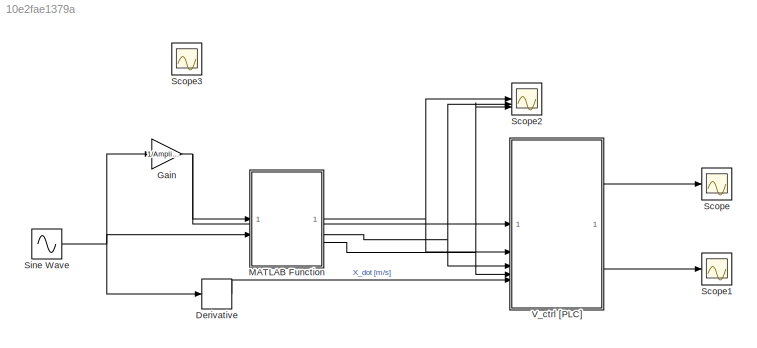
MODEL slx_10e2fae1379a
KIND model
CONFIG AbsTol = auto
CONFIG EnableMultiTasking = off
CONFIG FixedStep = 0.001
CONFIG MaxStep = auto
CONFIG MinStep = auto
CONFIG RelTol = 1e-3
CONFIG SampleTimeConstraint = Unconstrained
CONFIG SolverName = FixedStepDiscrete
CONFIG StartTime = 0.0
CONFIG StopTime = inf
WORKSPACE source: MATLAB code (in-file)
WORKSPACE Amplitude = 0.35/2  (= 0.175)
BLOCK [Derivative] Derivative
BLOCK [Gain] Gain
  Gain = 1/Amplitude
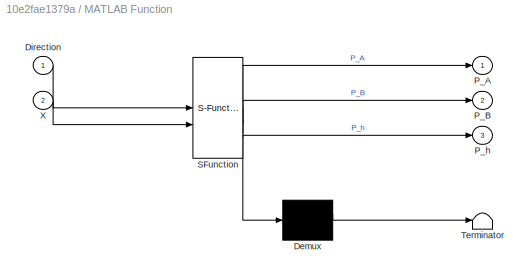
BLOCK [SubSystem] MATLAB Function
  ErrorFcn = Stateflow.Translate.translate
  PermitHierarchicalResolution = ExplicitOnly
  SFBlockType = MATLAB Function
  TreatAsAtomicUnit = on
BLOCK [Demux] MATLAB Function/ Demux 
  Outputs = 1
BLOCK [S-Function] MATLAB Function/ SFunction 
  EnableBusSupport = on
  FunctionName = sf_sfun
  PortCounts = [2 4]
  SFcnIsStateOwnerBlock = off
  SFunctionDeploymentMode = off
  Tag = Stateflow S-Function 1
BLOCK [Terminator] MATLAB Function/ Terminator 
BLOCK [Inport] MATLAB Function/Direction
BLOCK [Outport] MATLAB Function/P_A
BLOCK [Outport] MATLAB Function/P_B
  Port = 2
BLOCK [Outport] MATLAB Function/P_h
  Port = 3
BLOCK [Inport] MATLAB Function/X
  Port = 2
BLOCK [Scope] Scope
  Floating = off
  NumInputPorts = 1
  ScopeSpecificationString = Simulink.scopes.TimeScopeBlockCfg('CurrentConfiguration', extmgr.ConfigurationSet(extmgr.Configuration('Core','General UI',true),extmgr.Configuration('Core','Source UI',true),extmgr.Configuration('Sources','WiredSimulink',true),extmgr.Configuration('Visuals','Time Domain',true),extmgr.Configuration('Tools','Plot Navigation',true),extmgr.Configuration('Tools','Measurements',true)),'Version','2024a'...<+1ch>
BLOCK [Scope] Scope1
  Floating = off
  NumInputPorts = 1
  ScopeSpecificationString = Simulink.scopes.TimeScopeBlockCfg('CurrentConfiguration', extmgr.ConfigurationSet(extmgr.Configuration('Core','General UI',true),extmgr.Configuration('Core','Source UI',true),extmgr.Configuration('Sources','WiredSimulink',true,'DataLoggingVariableName','ScopeData1'),extmgr.Configuration('Visuals','Time Domain',true),extmgr.Configuration('Tools','Plot Navigation',true),extmgr.Configuration('Tools',...<+40ch>
BLOCK [Scope] Scope2
  Floating = off
  NumInputPorts = 3
  ScopeSpecificationString = Simulink.scopes.TimeScopeBlockCfg('CurrentConfiguration', extmgr.ConfigurationSet(extmgr.Configuration('Core','General UI',true),extmgr.Configuration('Core','Source UI',true),extmgr.Configuration('Sources','WiredSimulink',true,'DataLoggingVariableName','ScopeData2'),extmgr.Configuration('Visuals','Time Domain',true,'SerializedDisplays',{struct('MinYLimReal','-22.5','MaxYLimReal','202.5','YLabelRea...<+1528ch>
BLOCK [Scope] Scope3
  Floating = off
  NumInputPorts = 1
  ScopeSpecificationString = Simulink.scopes.TimeScopeBlockCfg('CurrentConfiguration', extmgr.ConfigurationSet(extmgr.Configuration('Core','General UI',true),extmgr.Configuration('Core','Source UI',true),extmgr.Configuration('Sources','WiredSimulink',true,'DataLoggingVariableName','ScopeData3'),extmgr.Configuration('Visuals','Time Domain',true),extmgr.Configuration('Tools','Plot Navigation',true),extmgr.Configuration('Tools',...<+40ch>
BLOCK [Sin] Sine Wave
  Amplitude = Amplitude
  Frequency = 1/10
  SampleTime = 0
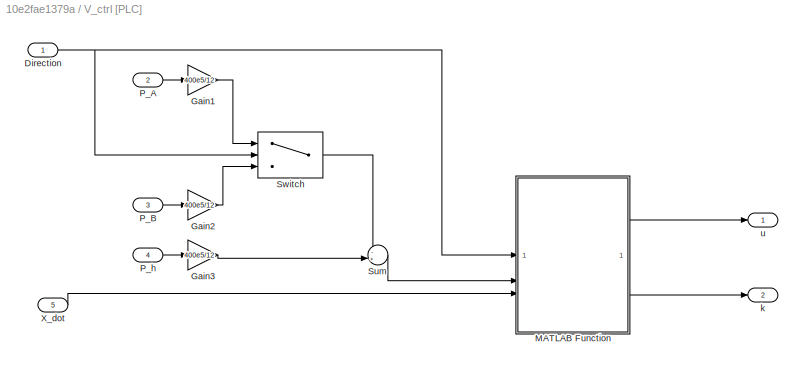
BLOCK [SubSystem] V_ctrl [PLC]
BLOCK [Inport] V_ctrl [PLC]/Direction
BLOCK [Gain] V_ctrl [PLC]/Gain1
  Commented = through
  Gain = 400e5/12
BLOCK [Gain] V_ctrl [PLC]/Gain2
  Commented = through
  Gain = 400e5/12
BLOCK [Gain] V_ctrl [PLC]/Gain3
  Commented = through
  Gain = 400e5/12
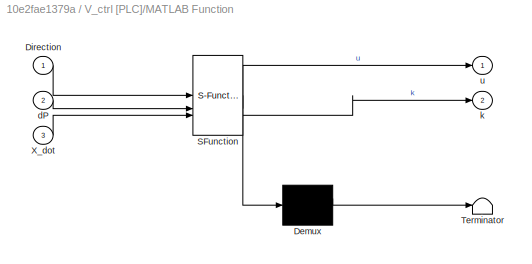
BLOCK [SubSystem] V_ctrl [PLC]/MATLAB Function
  ErrorFcn = Stateflow.Translate.translate
  PermitHierarchicalResolution = ExplicitOnly
  SFBlockType = MATLAB Function
  TreatAsAtomicUnit = on
BLOCK [Demux] V_ctrl [PLC]/MATLAB Function/ Demux 
  Outputs = 1
BLOCK [S-Function] V_ctrl [PLC]/MATLAB Function/ SFunction 
  EnableBusSupport = on
  FunctionName = sf_sfun
  PortCounts = [3 3]
  SFcnIsStateOwnerBlock = off
  SFunctionDeploymentMode = off
  Tag = Stateflow S-Function 2
BLOCK [Terminator] V_ctrl [PLC]/MATLAB Function/ Terminator 
BLOCK [Inport] V_ctrl [PLC]/MATLAB Function/Direction
BLOCK [Inport] V_ctrl [PLC]/MATLAB Function/X_dot
  Port = 3
BLOCK [Inport] V_ctrl [PLC]/MATLAB Function/dP
  Port = 2
BLOCK [Outport] V_ctrl [PLC]/MATLAB Function/k
  Port = 2
BLOCK [Outport] V_ctrl [PLC]/MATLAB Function/u
BLOCK [Inport] V_ctrl [PLC]/P_A
  Port = 2
BLOCK [Inport] V_ctrl [PLC]/P_B
  Port = 3
BLOCK [Inport] V_ctrl [PLC]/P_h
  Port = 4
BLOCK [Sum] V_ctrl [PLC]/Sum
  Inputs = -+|
BLOCK [Switch] V_ctrl [PLC]/Switch
  Criteria = u2 > Threshold
  InputSameDT = off
  SaturateOnIntegerOverflow = off
BLOCK [Inport] V_ctrl [PLC]/X_dot
  Port = 5
BLOCK [Outport] V_ctrl [PLC]/k
  Port = 2
BLOCK [Outport] V_ctrl [PLC]/u
LINE Derivative:1 -> V_ctrl [PLC]:5
NET Gain:1 -> MATLAB Function:1, V_ctrl [PLC]:1
NET MATLAB Function:1 -> Scope2:1, V_ctrl [PLC]:2
NET MATLAB Function:2 -> Scope2:2, V_ctrl [PLC]:3
NET MATLAB Function:3 -> Scope2:3, V_ctrl [PLC]:4
NET Sine Wave:1 -> Derivative:1, Gain:1, MATLAB Function:2
NET V_ctrl [PLC]/Direction:1 -> V_ctrl [PLC]/MATLAB Function:1, V_ctrl [PLC]/Switch:2
LINE V_ctrl [PLC]/Gain1:1 -> V_ctrl [PLC]/Switch:1
LINE V_ctrl [PLC]/Gain2:1 -> V_ctrl [PLC]/Switch:3
LINE V_ctrl [PLC]/Gain3:1 -> V_ctrl [PLC]/Sum:2
LINE V_ctrl [PLC]/MATLAB Function:1 -> V_ctrl [PLC]/u:1
LINE V_ctrl [PLC]/MATLAB Function:2 -> V_ctrl [PLC]/k:1
LINE V_ctrl [PLC]/P_A:1 -> V_ctrl [PLC]/Gain1:1
LINE V_ctrl [PLC]/P_B:1 -> V_ctrl [PLC]/Gain2:1
LINE V_ctrl [PLC]/P_h:1 -> V_ctrl [PLC]/Gain3:1
LINE V_ctrl [PLC]/Sum:1 -> V_ctrl [PLC]/MATLAB Function:2
LINE V_ctrl [PLC]/Switch:1 -> V_ctrl [PLC]/Sum:1
LINE V_ctrl [PLC]/X_dot:1 -> V_ctrl [PLC]/MATLAB Function:3
LINE V_ctrl [PLC]:1 -> Scope:1
LINE V_ctrl [PLC]:2 -> Scope1:1
note: NET lines group one-source signal fan-out (src -> all destinations, sorted); 1:1 wires keep LINE
CHART MATLAB Function states=1 transitions=1
  STATE_LABEL 'eML_blk_kernel()'
  STATE_LABEL 'SCRIPT:\nfunction [P_A, P_B, P_h] = fcn(Direction, X)\n\n%% fyske_parametere.m\n% Constants\nL1 = 3.625;\nL4 = 0.229;\nLg4x = L1-L4/2;\nLg4y = 0.08157;\nabx = 0.550;\naby = -0.130;\ng = 9.81;\nG1 =100*g;\nG4 = (4*76+16)*g;\nCy = -1.055;\nCx = 0.420;\nang_CA = atan2(Cy,Cx);\nang_k = atan2(aby,abx);\nb = abs(sqrt(Cy^2+Cx^2));\nc = abs(sqrt(abx^2+aby^2));\n% Calculations\n%syms Ax Ay P gamma beta ang_C ang_AB r_cb r_ab L...<+1232ch>'
CHART V_ctrl [PLC]/MATLAB Function states=1 transitions=1
  STATE_LABEL 'eML_blk_kernel()'
  STATE_LABEL 'SCRIPT:\nfunction [u,k] = fcn(Direction, dP, X_dot)\n\nphi = 0.7130;\nA = 33.1/100^2; % Area\nBW = 0.8; % Bandwidth\nSpoolTravel = 7; % Maximum Spool Travel\na = (SpoolTravel-BW)/25; % Valve Slope Characteristic [mm/(L/min)]\n\nif Direction > 0\n\n    Q = X_dot * A; % Wanted Flow\n\nelseif Direction < 0\n\n    Q = X_dot * (A*phi); % Wanted Flow\n\nelse\n\n    Q = 0; % Wanted Flow\n\nend\n\ndP_0 = 7e5; % Pressure drop wi...<+155ch>'
CHART  states=0 transitions=0
CHART  states=0 transitions=0
